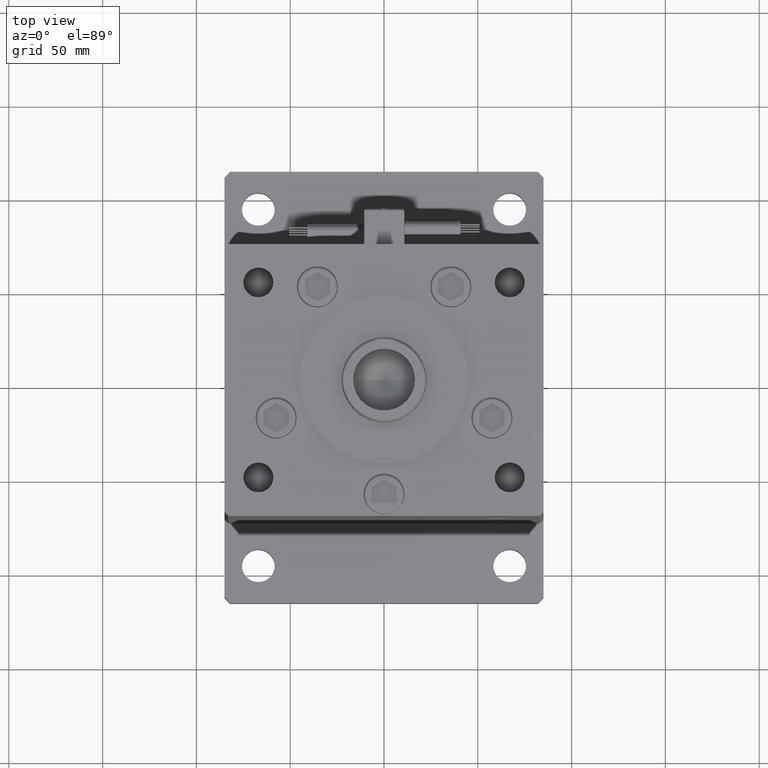
[diagram: clean part render]
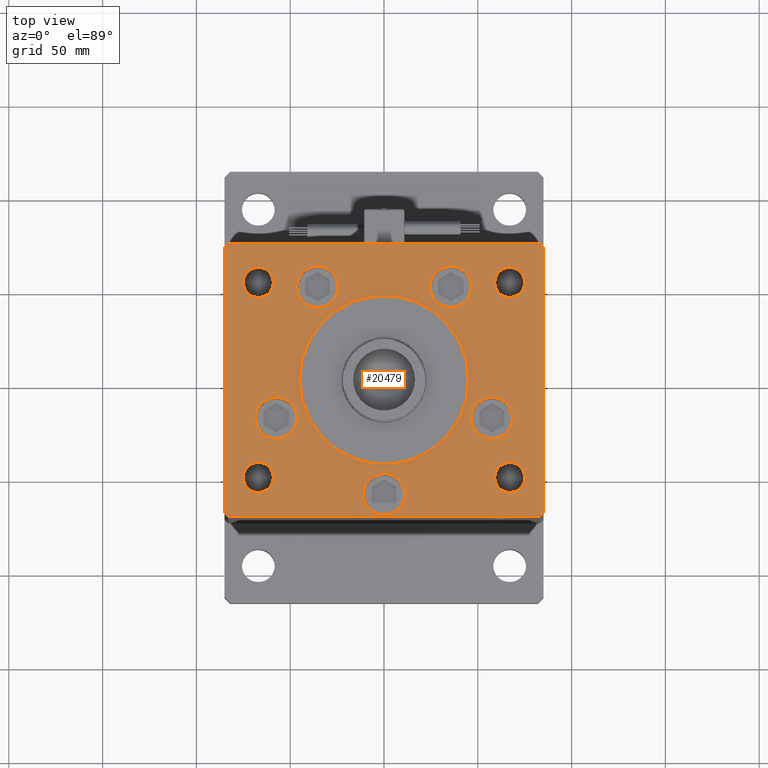
[diagram: same view with one face highlighted and labeled with its STEP entity id]
A machine part, top view. The second image highlights one B-rep face of the part: STEP entity #20479.
In plain terms, the highlighted planar face has unit normal (0, 0, 1).
Its self-contained STEP definition (entity closure, byte-faithful):
#32 = AXIS2_PLACEMENT_3D ( 'NONE', #36872, #54257, #53699 ) ;
#398 = DIRECTION ( 'NONE',  ( -0.000000000000000000, -0.000000000000000000, -1.000000000000000000 ) ) ;
#538 = EDGE_CURVE ( 'NONE', #21740, #25557, #29826, .T. ) ;
#642 = VERTEX_POINT ( 'NONE', #49469 ) ;
#901 = DIRECTION ( 'NONE',  ( 1.000000000000000000, 0.000000000000000000, 0.000000000000000000 ) ) ;
#1049 = FACE_BOUND ( 'NONE', #4080, .T. ) ;
#1129 = CARTESIAN_POINT ( 'NONE',  ( 67.00000000000000000, 52.00000000000000000, 0.000000000000000000 ) ) ;
#1163 = CIRCLE ( 'NONE', #41237, 11.00000000000000355 ) ;
#1595 = DIRECTION ( 'NONE',  ( 0.000000000000000000, 0.000000000000000000, 1.000000000000000000 ) ) ;
#1895 = FACE_BOUND ( 'NONE', #18426, .T. ) ;
#2313 = DIRECTION ( 'NONE',  ( 0.000000000000000000, 0.000000000000000000, 1.000000000000000000 ) ) ;
#2478 = ORIENTED_EDGE ( 'NONE', *, *, #22312, .T. ) ;
#3142 = CIRCLE ( 'NONE', #35019, 11.00000000000000000 ) ;
#3518 = CIRCLE ( 'NONE', #10807, 10.99999999999999645 ) ;
#3897 = VERTEX_POINT ( 'NONE', #51995 ) ;
#3919 = CIRCLE ( 'NONE', #30305, 10.99999999999999645 ) ;
#4080 = EDGE_LOOP ( 'NONE', ( #50523, #27424 ) ) ;
#4213 = DIRECTION ( 'NONE',  ( 0.000000000000000000, 0.000000000000000000, 1.000000000000000000 ) ) ;
#4307 = AXIS2_PLACEMENT_3D ( 'NONE', #55837, #7656, #26649 ) ;
#4583 = ORIENTED_EDGE ( 'NONE', *, *, #33814, .T. ) ;
#4791 = DIRECTION ( 'NONE',  ( 0.7071067811865474617, -0.7071067811865474617, 0.000000000000000000 ) ) ;
#4816 = VERTEX_POINT ( 'NONE', #52846 ) ;
#4828 = DIRECTION ( 'NONE',  ( -0.7071067811865500152, 0.7071067811865451302, 0.000000000000000000 ) ) ;
#4915 = DIRECTION ( 'NONE',  ( 0.000000000000000000, 0.000000000000000000, 1.000000000000000000 ) ) ;
#5270 = EDGE_LOOP ( 'NONE', ( #27823, #28835 ) ) ;
#5372 = CARTESIAN_POINT ( 'NONE',  ( -75.00000000000000000, -52.00000000000000711, 0.000000000000000000 ) ) ;
#5873 = CARTESIAN_POINT ( 'NONE',  ( 67.00000000000000000, 52.00000000000000000, 0.000000000000000000 ) ) ;
#6083 = VECTOR ( 'NONE', #37010, 1000.000000000000000 ) ;
#6162 = FACE_BOUND ( 'NONE', #53106, .T. ) ;
#6193 = EDGE_CURVE ( 'NONE', #14292, #49276, #27618, .T. ) ;
#6227 = CARTESIAN_POINT ( 'NONE',  ( 83.00000000000001421, 72.50000000000002842, 0.000000000000000000 ) ) ;
#6323 = DIRECTION ( 'NONE',  ( 0.000000000000000000, 0.000000000000000000, 1.000000000000000000 ) ) ;
#6762 = DIRECTION ( 'NONE',  ( 0.000000000000000000, 0.000000000000000000, 1.000000000000000000 ) ) ;
#6892 = DIRECTION ( 'NONE',  ( 1.000000000000000000, 0.000000000000000000, 0.000000000000000000 ) ) ;
#7143 = CIRCLE ( 'NONE', #41751, 45.00000000000000711 ) ;
#7287 = ORIENTED_EDGE ( 'NONE', *, *, #23158, .F. ) ;
#7379 = VERTEX_POINT ( 'NONE', #46911 ) ;
#7401 = EDGE_CURVE ( 'NONE', #9819, #14292, #30901, .T. ) ;
#7616 = DIRECTION ( 'NONE',  ( 1.000000000000000000, 0.000000000000000000, 0.000000000000000000 ) ) ;
#7656 = DIRECTION ( 'NONE',  ( -0.000000000000000000, -0.000000000000000000, -1.000000000000000000 ) ) ;
#7887 = CARTESIAN_POINT ( 'NONE',  ( -35.56063263990113654, 49.56249999999997868, 0.000000000000000000 ) ) ;
#8252 = CIRCLE ( 'NONE', #32, 10.99999999999999645 ) ;
#8310 = CARTESIAN_POINT ( 'NONE',  ( -45.00000000000000711, -6.938893903907228378E-15, 0.000000000000000000 ) ) ;
#8599 = ORIENTED_EDGE ( 'NONE', *, *, #27524, .F. ) ;
#8819 = CARTESIAN_POINT ( 'NONE',  ( -67.00000000000000000, -52.00000000000000711, 0.000000000000000000 ) ) ;
#8831 = LINE ( 'NONE', #26214, #55338 ) ;
#8854 = VERTEX_POINT ( 'NONE', #20246 ) ;
#9819 = VERTEX_POINT ( 'NONE', #51637 ) ;
#10045 = CARTESIAN_POINT ( 'NONE',  ( -35.56063263990113654, 49.56249999999997868, 0.000000000000000000 ) ) ;
#10130 = CARTESIAN_POINT ( 'NONE',  ( 67.00000000000000000, -52.00000000000000711, 0.000000000000000000 ) ) ;
#10231 = DIRECTION ( 'NONE',  ( 0.7071067811865474617, 0.7071067811865474617, 0.000000000000000000 ) ) ;
#10449 = FACE_BOUND ( 'NONE', #34000, .T. ) ;
#10474 = CARTESIAN_POINT ( 'NONE',  ( 0.000000000000000000, -61.00000000000000000, 0.000000000000000000 ) ) ;
#10614 = DIRECTION ( 'NONE',  ( 1.000000000000000000, 0.000000000000000000, 0.000000000000000000 ) ) ;
#10617 = VERTEX_POINT ( 'NONE', #8310 ) ;
#10724 = CARTESIAN_POINT ( 'NONE',  ( 0.000000000000000000, 0.000000000000000000, 0.000000000000000000 ) ) ;
#10807 = AXIS2_PLACEMENT_3D ( 'NONE', #27372, #36206, #49348 ) ;
#10923 = EDGE_CURVE ( 'NONE', #29557, #33103, #12228, .T. ) ;
#11114 = EDGE_CURVE ( 'NONE', #50473, #44704, #27241, .T. ) ;
#11530 = DIRECTION ( 'NONE',  ( 1.000000000000000000, 0.000000000000000000, 0.000000000000000000 ) ) ;
#11562 = CARTESIAN_POINT ( 'NONE',  ( -85.00000000000000000, 70.50000000000000000, 0.000000000000000000 ) ) ;
#11817 = CARTESIAN_POINT ( 'NONE',  ( -57.51135153650587029, -20.33333333333332504, 0.000000000000000000 ) ) ;
#12228 = LINE ( 'NONE', #51019, #50954 ) ;
#12398 = AXIS2_PLACEMENT_3D ( 'NONE', #49859, #12969, #30365 ) ;
#12442 = CARTESIAN_POINT ( 'NONE',  ( 75.00000000000001421, 52.00000000000000000, 0.000000000000000000 ) ) ;
#12844 = AXIS2_PLACEMENT_3D ( 'NONE', #10045, #6323, #6892 ) ;
#12969 = DIRECTION ( 'NONE',  ( 0.000000000000000000, 0.000000000000000000, 1.000000000000000000 ) ) ;
#13557 = ORIENTED_EDGE ( 'NONE', *, *, #48965, .F. ) ;
#13603 = LINE ( 'NONE', #33248, #41075 ) ;
#13693 = VERTEX_POINT ( 'NONE', #12442 ) ;
#13765 = CIRCLE ( 'NONE', #45668, 8.000000000000007105 ) ;
#13782 = CARTESIAN_POINT ( 'NONE',  ( -83.00000000000001421, -72.50000000000004263, 0.000000000000000000 ) ) ;
#14137 = CIRCLE ( 'NONE', #35070, 8.000000000000000000 ) ;
#14154 = FACE_BOUND ( 'NONE', #5270, .T. ) ;
#14264 = DIRECTION ( 'NONE',  ( -0.000000000000000000, -0.000000000000000000, -1.000000000000000000 ) ) ;
#14292 = VERTEX_POINT ( 'NONE', #48523 ) ;
#14458 = DIRECTION ( 'NONE',  ( 1.000000000000000000, 0.000000000000000000, 0.000000000000000000 ) ) ;
#14998 = FACE_BOUND ( 'NONE', #47151, .T. ) ;
#15008 = DIRECTION ( 'NONE',  ( 0.000000000000000000, 1.000000000000000000, 0.000000000000000000 ) ) ;
#15325 = EDGE_CURVE ( 'NONE', #29607, #8854, #13765, .T. ) ;
#15364 = ORIENTED_EDGE ( 'NONE', *, *, #47122, .F. ) ;
#15550 = VECTOR ( 'NONE', #35212, 1000.000000000000000 ) ;
#15968 = CARTESIAN_POINT ( 'NONE',  ( 83.00000000000001421, 72.50000000000002842, 0.000000000000000000 ) ) ;
#16007 = VERTEX_POINT ( 'NONE', #35162 ) ;
#16365 = AXIS2_PLACEMENT_3D ( 'NONE', #7887, #46967, #7616 ) ;
#16600 = VERTEX_POINT ( 'NONE', #22953 ) ;
#17088 = DIRECTION ( 'NONE',  ( 1.000000000000000000, 0.000000000000000000, 0.000000000000000000 ) ) ;
#17318 = VECTOR ( 'NONE', #4791, 1000.000000000000114 ) ;
#17544 = CARTESIAN_POINT ( 'NONE',  ( -85.00000000000000000, 70.50000000000000000, 0.000000000000000000 ) ) ;
#17603 = EDGE_CURVE ( 'NONE', #16600, #18383, #14137, .T. ) ;
#17678 = CARTESIAN_POINT ( 'NONE',  ( -11.00000000000000000, -61.00000000000000000, 0.000000000000000000 ) ) ;
#17777 = DIRECTION ( 'NONE',  ( -1.000000000000000000, 0.000000000000000000, 0.000000000000000000 ) ) ;
#17822 = EDGE_LOOP ( 'NONE', ( #43429, #13557 ) ) ;
#17924 = CARTESIAN_POINT ( 'NONE',  ( 83.00000000000001421, -72.49999999999994316, 0.000000000000000000 ) ) ;
#17999 = AXIS2_PLACEMENT_3D ( 'NONE', #19102, #14264, #36499 ) ;
#18093 = EDGE_CURVE ( 'NONE', #13693, #26671, #45227, .T. ) ;
#18137 = ORIENTED_EDGE ( 'NONE', *, *, #27538, .F. ) ;
#18383 = VERTEX_POINT ( 'NONE', #5372 ) ;
#18426 = EDGE_LOOP ( 'NONE', ( #53895, #7287 ) ) ;
#18609 = CARTESIAN_POINT ( 'NONE',  ( 57.51135153650587029, -20.33333333333332504, 0.000000000000000000 ) ) ;
#18691 = CARTESIAN_POINT ( 'NONE',  ( -59.00000000000000711, 52.00000000000001421, 0.000000000000000000 ) ) ;
#19076 = EDGE_CURVE ( 'NONE', #54737, #19439, #33354, .T. ) ;
#19102 = CARTESIAN_POINT ( 'NONE',  ( -67.00000000000000000, 52.00000000000001421, 0.000000000000000000 ) ) ;
#19273 = FACE_OUTER_BOUND ( 'NONE', #28881, .T. ) ;
#19439 = VERTEX_POINT ( 'NONE', #29717 ) ;
#19995 = CIRCLE ( 'NONE', #16365, 11.00000000000000000 ) ;
#20246 = CARTESIAN_POINT ( 'NONE',  ( 59.00000000000000000, -52.00000000000000711, 0.000000000000000000 ) ) ;
#20479 = ADVANCED_FACE ( 'NONE', ( #44975, #23266, #10449, #1049, #14998, #27832, #6162, #23540, #1895, #19273, #14154 ), #32402, .T. ) ;
#20931 = AXIS2_PLACEMENT_3D ( 'NONE', #1129, #36755, #31352 ) ;
#21426 = EDGE_CURVE ( 'NONE', #4816, #10617, #45222, .T. ) ;
#21549 = ORIENTED_EDGE ( 'NONE', *, *, #538, .T. ) ;
#21740 = VERTEX_POINT ( 'NONE', #47514 ) ;
#22148 = EDGE_CURVE ( 'NONE', #7379, #55219, #8831, .T. ) ;
#22312 = EDGE_CURVE ( 'NONE', #55219, #29557, #53848, .T. ) ;
#22953 = CARTESIAN_POINT ( 'NONE',  ( -59.00000000000000711, -52.00000000000000711, 0.000000000000000000 ) ) ;
#23158 = EDGE_CURVE ( 'NONE', #18383, #16600, #27936, .T. ) ;
#23266 = FACE_BOUND ( 'NONE', #42067, .T. ) ;
#23408 = ORIENTED_EDGE ( 'NONE', *, *, #55055, .F. ) ;
#23473 = ORIENTED_EDGE ( 'NONE', *, *, #21426, .F. ) ;
#23540 = FACE_BOUND ( 'NONE', #17822, .T. ) ;
#24432 = VECTOR ( 'NONE', #27180, 1000.000000000000000 ) ;
#24912 = EDGE_CURVE ( 'NONE', #25557, #21740, #56236, .T. ) ;
#25501 = AXIS2_PLACEMENT_3D ( 'NONE', #11817, #37483, #11530 ) ;
#25557 = VERTEX_POINT ( 'NONE', #18691 ) ;
#26214 = CARTESIAN_POINT ( 'NONE',  ( 85.00000000000001421, 70.50000000000002842, 0.000000000000000000 ) ) ;
#26364 = ORIENTED_EDGE ( 'NONE', *, *, #7401, .T. ) ;
#26649 = DIRECTION ( 'NONE',  ( -1.000000000000000000, 0.000000000000000000, 0.000000000000000000 ) ) ;
#26671 = VERTEX_POINT ( 'NONE', #54828 ) ;
#26702 = DIRECTION ( 'NONE',  ( 1.000000000000000000, 0.000000000000000000, 0.000000000000000000 ) ) ;
#26716 = DIRECTION ( 'NONE',  ( 1.000000000000000000, 0.000000000000000000, 0.000000000000000000 ) ) ;
#27180 = DIRECTION ( 'NONE',  ( 1.000000000000000000, 5.852079196066335998E-16, 0.000000000000000000 ) ) ;
#27215 = LINE ( 'NONE', #17544, #15550 ) ;
#27241 = CIRCLE ( 'NONE', #27285, 11.00000000000000000 ) ;
#27285 = AXIS2_PLACEMENT_3D ( 'NONE', #10474, #6762, #14458 ) ;
#27372 = CARTESIAN_POINT ( 'NONE',  ( -57.51135153650587029, -20.33333333333332504, 0.000000000000000000 ) ) ;
#27424 = ORIENTED_EDGE ( 'NONE', *, *, #31779, .F. ) ;
#27514 = DIRECTION ( 'NONE',  ( -1.000000000000000000, 0.000000000000000000, 0.000000000000000000 ) ) ;
#27524 = EDGE_CURVE ( 'NONE', #10617, #4816, #7143, .T. ) ;
#27538 = EDGE_CURVE ( 'NONE', #32428, #28491, #3518, .T. ) ;
#27618 = LINE ( 'NONE', #17924, #34380 ) ;
#27823 = ORIENTED_EDGE ( 'NONE', *, *, #15325, .T. ) ;
#27829 = ORIENTED_EDGE ( 'NONE', *, *, #50114, .T. ) ;
#27832 = FACE_BOUND ( 'NONE', #45086, .T. ) ;
#27924 = ORIENTED_EDGE ( 'NONE', *, *, #24912, .T. ) ;
#27931 = DIRECTION ( 'NONE',  ( 0.000000000000000000, 0.000000000000000000, 1.000000000000000000 ) ) ;
#27936 = CIRCLE ( 'NONE', #53426, 8.000000000000000000 ) ;
#28040 = CARTESIAN_POINT ( 'NONE',  ( 46.56063263990113654, 49.56249999999997868, 0.000000000000000000 ) ) ;
#28064 = CARTESIAN_POINT ( 'NONE',  ( 11.00000000000000000, -61.00000000000000000, 0.000000000000000000 ) ) ;
#28112 = DIRECTION ( 'NONE',  ( -0.000000000000000000, 0.000000000000000000, 1.000000000000000000 ) ) ;
#28380 = CARTESIAN_POINT ( 'NONE',  ( 75.00000000000001421, -52.00000000000000711, 0.000000000000000000 ) ) ;
#28450 = CARTESIAN_POINT ( 'NONE',  ( -46.51135153650587029, -20.33333333333332504, 0.000000000000000000 ) ) ;
#28491 = VERTEX_POINT ( 'NONE', #43610 ) ;
#28632 = ORIENTED_EDGE ( 'NONE', *, *, #11114, .F. ) ;
#28835 = ORIENTED_EDGE ( 'NONE', *, *, #42316, .T. ) ;
#28881 = EDGE_LOOP ( 'NONE', ( #27829, #26364, #29842, #4583, #32011, #2478, #47107, #34518 ) ) ;
#28911 = AXIS2_PLACEMENT_3D ( 'NONE', #30998, #4213, #26716 ) ;
#29092 = DIRECTION ( 'NONE',  ( 1.000000000000000000, 0.000000000000000000, 0.000000000000000000 ) ) ;
#29557 = VERTEX_POINT ( 'NONE', #37564 ) ;
#29607 = VERTEX_POINT ( 'NONE', #28380 ) ;
#29717 = CARTESIAN_POINT ( 'NONE',  ( 24.56063263990113299, 49.56249999999997868, 0.000000000000000000 ) ) ;
#29826 = CIRCLE ( 'NONE', #4307, 7.999999999999992895 ) ;
#29842 = ORIENTED_EDGE ( 'NONE', *, *, #6193, .T. ) ;
#30305 = AXIS2_PLACEMENT_3D ( 'NONE', #18609, #53959, #10614 ) ;
#30365 = DIRECTION ( 'NONE',  ( 1.000000000000000000, 0.000000000000000000, 0.000000000000000000 ) ) ;
#30421 = EDGE_CURVE ( 'NONE', #32705, #46177, #19995, .T. ) ;
#30462 = LINE ( 'NONE', #48431, #17318 ) ;
#30703 = EDGE_CURVE ( 'NONE', #28491, #32428, #35503, .T. ) ;
#30707 = DIRECTION ( 'NONE',  ( 0.000000000000000000, 0.000000000000000000, 1.000000000000000000 ) ) ;
#30901 = LINE ( 'NONE', #13782, #24432 ) ;
#30998 = CARTESIAN_POINT ( 'NONE',  ( 0.000000000000000000, -6.938893903907228378E-15, 0.000000000000000000 ) ) ;
#31135 = CARTESIAN_POINT ( 'NONE',  ( 35.56063263990113654, 49.56249999999997868, 0.000000000000000000 ) ) ;
#31352 = DIRECTION ( 'NONE',  ( 1.000000000000000000, 0.000000000000000000, 0.000000000000000000 ) ) ;
#31651 = CARTESIAN_POINT ( 'NONE',  ( 0.000000000000000000, -6.938893903907228378E-15, 0.000000000000000000 ) ) ;
#31779 = EDGE_CURVE ( 'NONE', #16007, #642, #8252, .T. ) ;
#32011 = ORIENTED_EDGE ( 'NONE', *, *, #22148, .T. ) ;
#32134 = CIRCLE ( 'NONE', #55819, 8.000000000000007105 ) ;
#32402 = PLANE ( 'NONE',  #33436 ) ;
#32428 = VERTEX_POINT ( 'NONE', #28450 ) ;
#32705 = VERTEX_POINT ( 'NONE', #41871 ) ;
#33059 = EDGE_LOOP ( 'NONE', ( #8599, #23473 ) ) ;
#33103 = VERTEX_POINT ( 'NONE', #11562 ) ;
#33248 = CARTESIAN_POINT ( 'NONE',  ( 85.00000000000001421, -70.49999999999994316, 0.000000000000000000 ) ) ;
#33354 = CIRCLE ( 'NONE', #12398, 11.00000000000000355 ) ;
#33436 = AXIS2_PLACEMENT_3D ( 'NONE', #10724, #28112, #36953 ) ;
#33814 = EDGE_CURVE ( 'NONE', #49276, #7379, #13603, .T. ) ;
#33980 = EDGE_CURVE ( 'NONE', #33103, #3897, #27215, .T. ) ;
#34000 = EDGE_LOOP ( 'NONE', ( #35909, #23408 ) ) ;
#34380 = VECTOR ( 'NONE', #10231, 1000.000000000000114 ) ;
#34518 = ORIENTED_EDGE ( 'NONE', *, *, #33980, .T. ) ;
#35019 = AXIS2_PLACEMENT_3D ( 'NONE', #39003, #30707, #26702 ) ;
#35070 = AXIS2_PLACEMENT_3D ( 'NONE', #8819, #43896, #17088 ) ;
#35162 = CARTESIAN_POINT ( 'NONE',  ( 46.51135153650587029, -20.33333333333332504, 0.000000000000000000 ) ) ;
#35212 = DIRECTION ( 'NONE',  ( 0.000000000000000000, -1.000000000000000000, 0.000000000000000000 ) ) ;
#35503 = CIRCLE ( 'NONE', #25501, 10.99999999999999645 ) ;
#35909 = ORIENTED_EDGE ( 'NONE', *, *, #19076, .F. ) ;
#36206 = DIRECTION ( 'NONE',  ( 0.000000000000000000, 0.000000000000000000, 1.000000000000000000 ) ) ;
#36499 = DIRECTION ( 'NONE',  ( -1.000000000000000000, 0.000000000000000000, 0.000000000000000000 ) ) ;
#36755 = DIRECTION ( 'NONE',  ( 0.000000000000000000, 0.000000000000000000, 1.000000000000000000 ) ) ;
#36872 = CARTESIAN_POINT ( 'NONE',  ( 57.51135153650587029, -20.33333333333332504, 0.000000000000000000 ) ) ;
#36953 = DIRECTION ( 'NONE',  ( 1.000000000000000000, 0.000000000000000000, 0.000000000000000000 ) ) ;
#37010 = DIRECTION ( 'NONE',  ( -1.000000000000000000, -2.508033941171286997E-16, 0.000000000000000000 ) ) ;
#37241 = CARTESIAN_POINT ( 'NONE',  ( 85.00000000000001421, -70.49999999999994316, 0.000000000000000000 ) ) ;
#37417 = CIRCLE ( 'NONE', #12844, 11.00000000000000000 ) ;
#37483 = DIRECTION ( 'NONE',  ( 0.000000000000000000, 0.000000000000000000, 1.000000000000000000 ) ) ;
#37564 = CARTESIAN_POINT ( 'NONE',  ( -82.99999999999998579, 72.49999999999998579, 0.000000000000000000 ) ) ;
#37690 = ORIENTED_EDGE ( 'NONE', *, *, #30703, .F. ) ;
#38823 = EDGE_CURVE ( 'NONE', #46177, #32705, #37417, .T. ) ;
#39003 = CARTESIAN_POINT ( 'NONE',  ( 0.000000000000000000, -61.00000000000000000, 0.000000000000000000 ) ) ;
#41075 = VECTOR ( 'NONE', #15008, 1000.000000000000000 ) ;
#41237 = AXIS2_PLACEMENT_3D ( 'NONE', #31135, #4915, #901 ) ;
#41751 = AXIS2_PLACEMENT_3D ( 'NONE', #31651, #27931, #45354 ) ;
#41871 = CARTESIAN_POINT ( 'NONE',  ( -46.56063263990113654, 49.56249999999997868, 0.000000000000000000 ) ) ;
#41877 = CIRCLE ( 'NONE', #20931, 8.000000000000007105 ) ;
#41950 = CARTESIAN_POINT ( 'NONE',  ( -67.00000000000000000, -52.00000000000000711, 0.000000000000000000 ) ) ;
#42067 = EDGE_LOOP ( 'NONE', ( #55722, #52022 ) ) ;
#42316 = EDGE_CURVE ( 'NONE', #8854, #29607, #32134, .T. ) ;
#42605 = EDGE_CURVE ( 'NONE', #642, #16007, #3919, .T. ) ;
#43429 = ORIENTED_EDGE ( 'NONE', *, *, #18093, .F. ) ;
#43610 = CARTESIAN_POINT ( 'NONE',  ( -68.51135153650587029, -20.33333333333332504, 0.000000000000000000 ) ) ;
#43896 = DIRECTION ( 'NONE',  ( 0.000000000000000000, 0.000000000000000000, 1.000000000000000000 ) ) ;
#44704 = VERTEX_POINT ( 'NONE', #17678 ) ;
#44975 = FACE_BOUND ( 'NONE', #33059, .T. ) ;
#45086 = EDGE_LOOP ( 'NONE', ( #18137, #37690 ) ) ;
#45222 = CIRCLE ( 'NONE', #28911, 45.00000000000000711 ) ;
#45227 = CIRCLE ( 'NONE', #55215, 8.000000000000007105 ) ;
#45354 = DIRECTION ( 'NONE',  ( 1.000000000000000000, 0.000000000000000000, 0.000000000000000000 ) ) ;
#45668 = AXIS2_PLACEMENT_3D ( 'NONE', #48035, #398, #17777 ) ;
#46177 = VERTEX_POINT ( 'NONE', #49381 ) ;
#46911 = CARTESIAN_POINT ( 'NONE',  ( 85.00000000000001421, 70.50000000000002842, 0.000000000000000000 ) ) ;
#46967 = DIRECTION ( 'NONE',  ( 0.000000000000000000, 0.000000000000000000, 1.000000000000000000 ) ) ;
#47107 = ORIENTED_EDGE ( 'NONE', *, *, #10923, .T. ) ;
#47122 = EDGE_CURVE ( 'NONE', #44704, #50473, #3142, .T. ) ;
#47151 = EDGE_LOOP ( 'NONE', ( #28632, #15364 ) ) ;
#47514 = CARTESIAN_POINT ( 'NONE',  ( -75.00000000000000000, 52.00000000000001421, 0.000000000000000000 ) ) ;
#48035 = CARTESIAN_POINT ( 'NONE',  ( 67.00000000000000000, -52.00000000000000711, 0.000000000000000000 ) ) ;
#48431 = CARTESIAN_POINT ( 'NONE',  ( -85.00000000000000000, -70.50000000000004263, 0.000000000000000000 ) ) ;
#48523 = CARTESIAN_POINT ( 'NONE',  ( 83.00000000000001421, -72.49999999999994316, 0.000000000000000000 ) ) ;
#48942 = DIRECTION ( 'NONE',  ( 1.000000000000000000, 0.000000000000000000, 0.000000000000000000 ) ) ;
#48965 = EDGE_CURVE ( 'NONE', #26671, #13693, #41877, .T. ) ;
#49204 = DIRECTION ( 'NONE',  ( -0.000000000000000000, -0.000000000000000000, -1.000000000000000000 ) ) ;
#49276 = VERTEX_POINT ( 'NONE', #37241 ) ;
#49348 = DIRECTION ( 'NONE',  ( 1.000000000000000000, 0.000000000000000000, 0.000000000000000000 ) ) ;
#49381 = CARTESIAN_POINT ( 'NONE',  ( -24.56063263990113299, 49.56249999999997868, 0.000000000000000000 ) ) ;
#49469 = CARTESIAN_POINT ( 'NONE',  ( 68.51135153650587029, -20.33333333333332504, 0.000000000000000000 ) ) ;
#49859 = CARTESIAN_POINT ( 'NONE',  ( 35.56063263990113654, 49.56249999999997868, 0.000000000000000000 ) ) ;
#50114 = EDGE_CURVE ( 'NONE', #3897, #9819, #30462, .T. ) ;
#50473 = VERTEX_POINT ( 'NONE', #28064 ) ;
#50523 = ORIENTED_EDGE ( 'NONE', *, *, #42605, .F. ) ;
#50729 = DIRECTION ( 'NONE',  ( -0.7071067811865549002, -0.7071067811865401342, 0.000000000000000000 ) ) ;
#50954 = VECTOR ( 'NONE', #50729, 1000.000000000000000 ) ;
#51019 = CARTESIAN_POINT ( 'NONE',  ( -82.99999999999998579, 72.49999999999998579, 0.000000000000000000 ) ) ;
#51637 = CARTESIAN_POINT ( 'NONE',  ( -83.00000000000001421, -72.50000000000004263, 0.000000000000000000 ) ) ;
#51995 = CARTESIAN_POINT ( 'NONE',  ( -85.00000000000000000, -70.50000000000004263, 0.000000000000000000 ) ) ;
#52022 = ORIENTED_EDGE ( 'NONE', *, *, #30421, .F. ) ;
#52846 = CARTESIAN_POINT ( 'NONE',  ( 45.00000000000000711, -1.427983307744138033E-15, 0.000000000000000000 ) ) ;
#53106 = EDGE_LOOP ( 'NONE', ( #27924, #21549 ) ) ;
#53426 = AXIS2_PLACEMENT_3D ( 'NONE', #41950, #2313, #29092 ) ;
#53699 = DIRECTION ( 'NONE',  ( 1.000000000000000000, 0.000000000000000000, 0.000000000000000000 ) ) ;
#53848 = LINE ( 'NONE', #6227, #6083 ) ;
#53895 = ORIENTED_EDGE ( 'NONE', *, *, #17603, .F. ) ;
#53959 = DIRECTION ( 'NONE',  ( 0.000000000000000000, 0.000000000000000000, 1.000000000000000000 ) ) ;
#54257 = DIRECTION ( 'NONE',  ( 0.000000000000000000, 0.000000000000000000, 1.000000000000000000 ) ) ;
#54737 = VERTEX_POINT ( 'NONE', #28040 ) ;
#54828 = CARTESIAN_POINT ( 'NONE',  ( 59.00000000000000000, 52.00000000000000000, 0.000000000000000000 ) ) ;
#55055 = EDGE_CURVE ( 'NONE', #19439, #54737, #1163, .T. ) ;
#55215 = AXIS2_PLACEMENT_3D ( 'NONE', #5873, #1595, #48942 ) ;
#55219 = VERTEX_POINT ( 'NONE', #15968 ) ;
#55338 = VECTOR ( 'NONE', #4828, 1000.000000000000114 ) ;
#55722 = ORIENTED_EDGE ( 'NONE', *, *, #38823, .F. ) ;
#55819 = AXIS2_PLACEMENT_3D ( 'NONE', #10130, #49204, #27514 ) ;
#55837 = CARTESIAN_POINT ( 'NONE',  ( -67.00000000000000000, 52.00000000000001421, 0.000000000000000000 ) ) ;
#56236 = CIRCLE ( 'NONE', #17999, 7.999999999999992895 ) ;